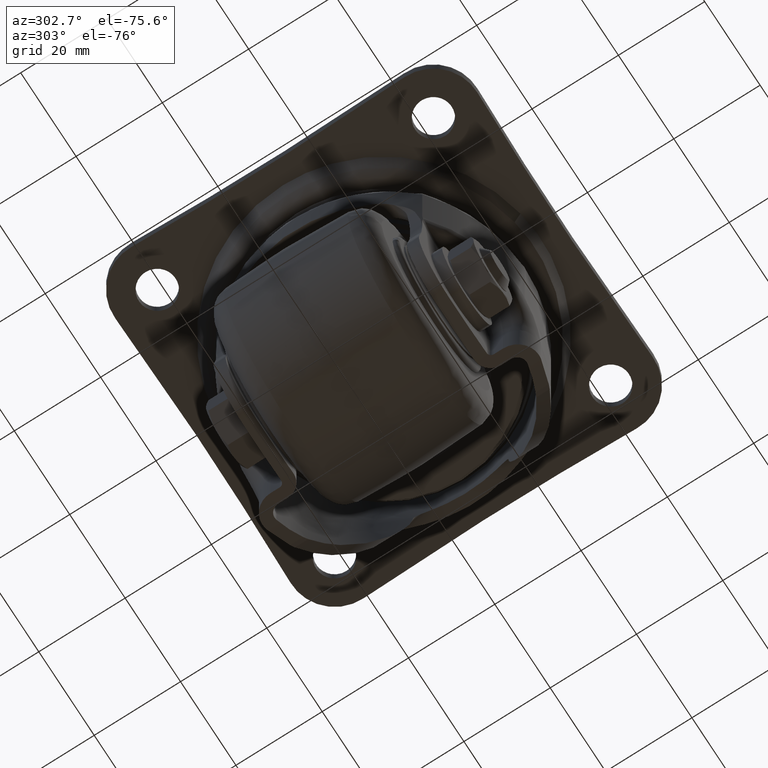
[diagram: clean part render]
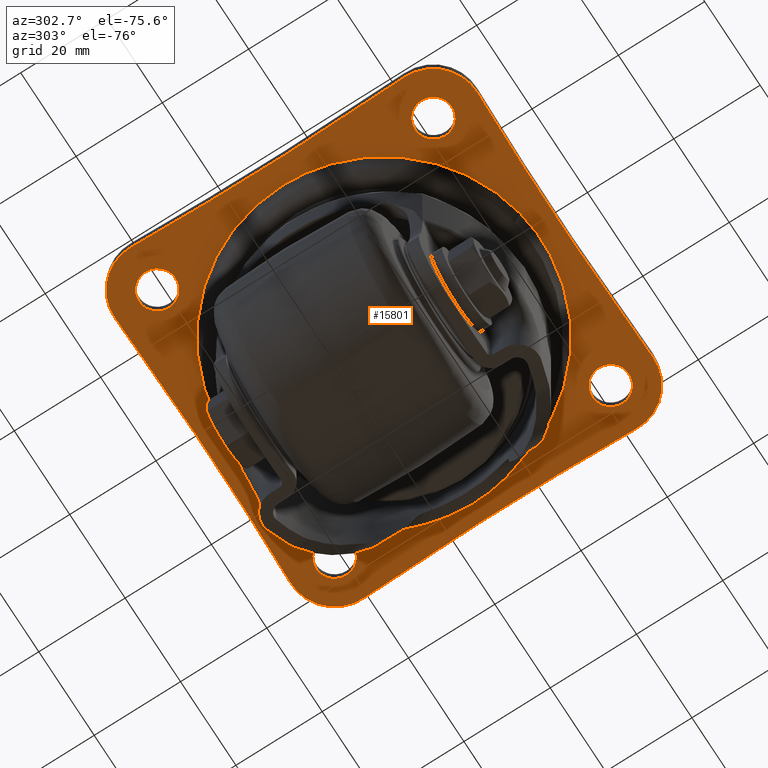
[diagram: same view with one face highlighted and labeled with its STEP entity id]
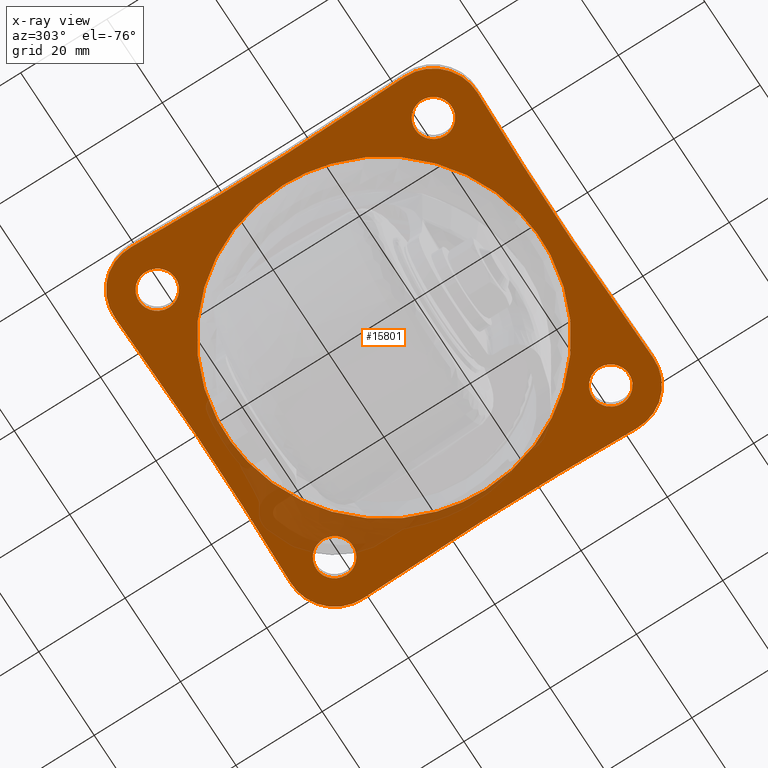
[diagram: x-ray of the same camera — body ghosted, the highlighted face saturated]
A machine part, auxiliary view. The second image highlights one B-rep face of the part: STEP entity #15801.
The next image is the same camera in x-ray: the body ghosted, the highlighted face saturated — about 11% of this face is hidden behind the body in this view.
In plain terms, the highlighted face is a freeform B-spline surface patch.
Its self-contained STEP definition (entity closure, byte-faithful):
#14460=CARTESIAN_POINT('',(-36.250000000000007,32.000003999999947,-3.199992999999955));
#14461=VERTEX_POINT('',#14460);
#14462=CARTESIAN_POINT('',(-32.333451157081043,27.763105331652859,-3.199992999999954));
#14463=VERTEX_POINT('',#14462);
#14464=CARTESIAN_POINT('',(-36.250000000000007,32.000003999999947,-3.199992999999955));
#14465=CARTESIAN_POINT('',(-36.250000000000007,28.071344410673664,-3.199992999999955));
#14466=CARTESIAN_POINT('',(-32.333451157081051,27.763105331652870,-3.199992999999956));
#14474=(BOUNDED_CURVE()B_SPLINE_CURVE(2,(#14464,#14465,#14466),.UNSPECIFIED.,.F.,.U.)B_SPLINE_CURVE_WITH_KNOTS((3,3),(0.0,0.236331300623149),.UNSPECIFIED.)CURVE()GEOMETRIC_REPRESENTATION_ITEM()RATIONAL_B_SPLINE_CURVE((1.0,0.723120658616464,0.969723356151744))REPRESENTATION_ITEM(''));
#14475=EDGE_CURVE('',#14461,#14463,#14474,.T.);
#14477=CARTESIAN_POINT('',(-31.666548842918960,36.236902668347042,-3.199992999999954));
#14478=VERTEX_POINT('',#14477);
#14479=CARTESIAN_POINT('',(-31.666548842918957,36.236902668347042,-3.199992999999956));
#14480=CARTESIAN_POINT('',(-31.833017045098007,36.250003999999947,-3.199992999999954));
#14481=CARTESIAN_POINT('',(-32.0,36.250003999999947,-3.199992999999955));
#14482=CARTESIAN_POINT('',(-36.250000000000014,36.250003999999954,-3.199992999999955));
#14483=CARTESIAN_POINT('',(-36.250000000000007,32.000003999999947,-3.199992999999955));
#14491=(BOUNDED_CURVE()B_SPLINE_CURVE(2,(#14479,#14480,#14481,#14482,#14483),.UNSPECIFIED.,.F.,.U.)B_SPLINE_CURVE_WITH_KNOTS((3,2,3),(0.736331300623150,0.750000000000000,1.0),.UNSPECIFIED.)CURVE()GEOMETRIC_REPRESENTATION_ITEM()RATIONAL_B_SPLINE_CURVE((0.969723356151745,0.983986122570083,1.0,0.707106781186548,1.0))REPRESENTATION_ITEM(''));
#14492=EDGE_CURVE('',#14478,#14461,#14491,.T.);
#14559=CARTESIAN_POINT('',(-27.750000000000000,32.000003999999947,-3.199992999999955));
#14560=VERTEX_POINT('',#14559);
#14561=CARTESIAN_POINT('',(-32.333451157081051,27.763105331652863,-3.199992999999955));
#14562=CARTESIAN_POINT('',(-32.166982954902004,27.750003999999947,-3.199992999999954));
#14563=CARTESIAN_POINT('',(-32.0,27.750003999999951,-3.199992999999955));
#14564=CARTESIAN_POINT('',(-27.749999999999989,27.750003999999954,-3.199992999999955));
#14565=CARTESIAN_POINT('',(-27.750000000000000,32.000003999999947,-3.199992999999955));
#14573=(BOUNDED_CURVE()B_SPLINE_CURVE(2,(#14561,#14562,#14563,#14564,#14565),.UNSPECIFIED.,.F.,.U.)B_SPLINE_CURVE_WITH_KNOTS((3,2,3),(0.236331300623150,0.250000000000000,0.500000000000000),.UNSPECIFIED.)CURVE()GEOMETRIC_REPRESENTATION_ITEM()RATIONAL_B_SPLINE_CURVE((0.969723356151745,0.983986122570083,1.0,0.707106781186548,1.0))REPRESENTATION_ITEM(''));
#14574=EDGE_CURVE('',#14463,#14560,#14573,.T.);
#14608=CARTESIAN_POINT('',(-27.750000000000000,32.000003999999947,-3.199992999999955));
#14609=CARTESIAN_POINT('',(-27.749999999999989,35.928663589326234,-3.199992999999955));
#14610=CARTESIAN_POINT('',(-31.666548842918949,36.236902668347028,-3.199992999999955));
#14618=(BOUNDED_CURVE()B_SPLINE_CURVE(2,(#14608,#14609,#14610),.UNSPECIFIED.,.F.,.U.)B_SPLINE_CURVE_WITH_KNOTS((3,3),(0.500000000000000,0.736331300623149),.UNSPECIFIED.)CURVE()GEOMETRIC_REPRESENTATION_ITEM()RATIONAL_B_SPLINE_CURVE((1.0,0.723120658616464,0.969723356151745))REPRESENTATION_ITEM(''));
#14619=EDGE_CURVE('',#14560,#14478,#14618,.T.);
#14642=CARTESIAN_POINT('',(27.750000000000000,32.000003999999947,-3.199992999999955));
#14643=VERTEX_POINT('',#14642);
#14644=CARTESIAN_POINT('',(31.666548842918960,27.763105331652859,-3.199992999999955));
#14645=VERTEX_POINT('',#14644);
#14646=CARTESIAN_POINT('',(27.750000000000000,32.000003999999947,-3.199992999999955));
#14647=CARTESIAN_POINT('',(27.749999999999993,28.071344410673660,-3.199992999999954));
#14648=CARTESIAN_POINT('',(31.666548842918960,27.763105331652863,-3.199992999999955));
#14656=(BOUNDED_CURVE()B_SPLINE_CURVE(2,(#14646,#14647,#14648),.UNSPECIFIED.,.F.,.U.)B_SPLINE_CURVE_WITH_KNOTS((3,3),(0.0,0.236331300623150),.UNSPECIFIED.)CURVE()GEOMETRIC_REPRESENTATION_ITEM()RATIONAL_B_SPLINE_CURVE((1.0,0.723120658616464,0.969723356151745))REPRESENTATION_ITEM(''));
#14657=EDGE_CURVE('',#14643,#14645,#14656,.T.);
#14659=CARTESIAN_POINT('',(32.333451157081043,36.236902668347042,-3.199992999999955));
#14660=VERTEX_POINT('',#14659);
#14661=CARTESIAN_POINT('',(32.333451157081051,36.236902668347042,-3.199992999999956));
#14662=CARTESIAN_POINT('',(32.166982954902004,36.250003999999947,-3.199992999999954));
#14663=CARTESIAN_POINT('',(32.0,36.250003999999947,-3.199992999999955));
#14664=CARTESIAN_POINT('',(27.749999999999989,36.250003999999954,-3.199992999999955));
#14665=CARTESIAN_POINT('',(27.750000000000000,32.000003999999947,-3.199992999999955));
#14673=(BOUNDED_CURVE()B_SPLINE_CURVE(2,(#14661,#14662,#14663,#14664,#14665),.UNSPECIFIED.,.F.,.U.)B_SPLINE_CURVE_WITH_KNOTS((3,2,3),(0.736331300623150,0.750000000000000,1.0),.UNSPECIFIED.)CURVE()GEOMETRIC_REPRESENTATION_ITEM()RATIONAL_B_SPLINE_CURVE((0.969723356151745,0.983986122570083,1.0,0.707106781186548,1.0))REPRESENTATION_ITEM(''));
#14674=EDGE_CURVE('',#14660,#14643,#14673,.T.);
#14741=CARTESIAN_POINT('',(36.250000000000007,32.000003999999947,-3.199992999999955));
#14742=VERTEX_POINT('',#14741);
#14743=CARTESIAN_POINT('',(31.666548842918953,27.763105331652866,-3.199992999999955));
#14744=CARTESIAN_POINT('',(31.833017045098000,27.750003999999951,-3.199992999999955));
#14745=CARTESIAN_POINT('',(32.0,27.750003999999951,-3.199992999999955));
#14746=CARTESIAN_POINT('',(36.250000000000014,27.750003999999954,-3.199992999999955));
#14747=CARTESIAN_POINT('',(36.250000000000007,32.000003999999947,-3.199992999999955));
#14755=(BOUNDED_CURVE()B_SPLINE_CURVE(2,(#14743,#14744,#14745,#14746,#14747),.UNSPECIFIED.,.F.,.U.)B_SPLINE_CURVE_WITH_KNOTS((3,2,3),(0.236331300623149,0.250000000000000,0.500000000000000),.UNSPECIFIED.)CURVE()GEOMETRIC_REPRESENTATION_ITEM()RATIONAL_B_SPLINE_CURVE((0.969723356151745,0.983986122570083,1.0,0.707106781186548,1.0))REPRESENTATION_ITEM(''));
#14756=EDGE_CURVE('',#14645,#14742,#14755,.T.);
#14790=CARTESIAN_POINT('',(36.250000000000007,32.000003999999947,-3.199992999999955));
#14791=CARTESIAN_POINT('',(36.250000000000000,35.928663589326241,-3.199992999999954));
#14792=CARTESIAN_POINT('',(32.333451157081051,36.236902668347042,-3.199992999999956));
#14800=(BOUNDED_CURVE()B_SPLINE_CURVE(2,(#14790,#14791,#14792),.UNSPECIFIED.,.F.,.U.)B_SPLINE_CURVE_WITH_KNOTS((3,3),(0.500000000000000,0.736331300623150),.UNSPECIFIED.)CURVE()GEOMETRIC_REPRESENTATION_ITEM()RATIONAL_B_SPLINE_CURVE((1.0,0.723120658616464,0.969723356151745))REPRESENTATION_ITEM(''));
#14801=EDGE_CURVE('',#14742,#14660,#14800,.T.);
#14824=CARTESIAN_POINT('',(27.750000000000000,-32.0,-3.199992999999955));
#14825=VERTEX_POINT('',#14824);
#14826=CARTESIAN_POINT('',(31.666548842918960,-36.236898668347102,-3.199992999999955));
#14827=VERTEX_POINT('',#14826);
#14828=CARTESIAN_POINT('',(27.750000000000000,-32.0,-3.199992999999955));
#14829=CARTESIAN_POINT('',(27.749999999999993,-35.928659589326301,-3.199992999999954));
#14830=CARTESIAN_POINT('',(31.666548842918957,-36.236898668347095,-3.199992999999956));
#14838=(BOUNDED_CURVE()B_SPLINE_CURVE(2,(#14828,#14829,#14830),.UNSPECIFIED.,.F.,.U.)B_SPLINE_CURVE_WITH_KNOTS((3,3),(0.0,0.236331300623150),.UNSPECIFIED.)CURVE()GEOMETRIC_REPRESENTATION_ITEM()RATIONAL_B_SPLINE_CURVE((1.0,0.723120658616464,0.969723356151745))REPRESENTATION_ITEM(''));
#14839=EDGE_CURVE('',#14825,#14827,#14838,.T.);
#14841=CARTESIAN_POINT('',(32.333451157081043,-27.763101331652908,-3.199992999999955));
#14842=VERTEX_POINT('',#14841);
#14843=CARTESIAN_POINT('',(32.333451157081051,-27.763101331652916,-3.199992999999956));
#14844=CARTESIAN_POINT('',(32.166982954902004,-27.749999999999996,-3.199992999999954));
#14845=CARTESIAN_POINT('',(32.0,-27.750000000000000,-3.199992999999955));
#14846=CARTESIAN_POINT('',(27.749999999999989,-27.749999999999989,-3.199992999999955));
#14847=CARTESIAN_POINT('',(27.750000000000000,-32.0,-3.199992999999955));
#14855=(BOUNDED_CURVE()B_SPLINE_CURVE(2,(#14843,#14844,#14845,#14846,#14847),.UNSPECIFIED.,.F.,.U.)B_SPLINE_CURVE_WITH_KNOTS((3,2,3),(0.736331300623150,0.750000000000000,1.0),.UNSPECIFIED.)CURVE()GEOMETRIC_REPRESENTATION_ITEM()RATIONAL_B_SPLINE_CURVE((0.969723356151745,0.983986122570083,1.0,0.707106781186548,1.0))REPRESENTATION_ITEM(''));
#14856=EDGE_CURVE('',#14842,#14825,#14855,.T.);
#14923=CARTESIAN_POINT('',(36.250000000000007,-32.0,-3.199992999999955));
#14924=VERTEX_POINT('',#14923);
#14925=CARTESIAN_POINT('',(31.666548842918960,-36.236898668347095,-3.199992999999955));
#14926=CARTESIAN_POINT('',(31.833017045098007,-36.250000000000007,-3.199992999999954));
#14927=CARTESIAN_POINT('',(32.0,-36.250000000000007,-3.199992999999955));
#14928=CARTESIAN_POINT('',(36.250000000000014,-36.250000000000014,-3.199992999999955));
#14929=CARTESIAN_POINT('',(36.250000000000007,-32.0,-3.199992999999955));
#14937=(BOUNDED_CURVE()B_SPLINE_CURVE(2,(#14925,#14926,#14927,#14928,#14929),.UNSPECIFIED.,.F.,.U.)B_SPLINE_CURVE_WITH_KNOTS((3,2,3),(0.236331300623150,0.250000000000000,0.500000000000000),.UNSPECIFIED.)CURVE()GEOMETRIC_REPRESENTATION_ITEM()RATIONAL_B_SPLINE_CURVE((0.969723356151745,0.983986122570083,1.0,0.707106781186548,1.0))REPRESENTATION_ITEM(''));
#14938=EDGE_CURVE('',#14827,#14924,#14937,.T.);
#14972=CARTESIAN_POINT('',(36.250000000000007,-32.0,-3.199992999999955));
#14973=CARTESIAN_POINT('',(36.250000000000000,-28.071340410673709,-3.199992999999954));
#14974=CARTESIAN_POINT('',(32.333451157081051,-27.763101331652916,-3.199992999999956));
#14982=(BOUNDED_CURVE()B_SPLINE_CURVE(2,(#14972,#14973,#14974),.UNSPECIFIED.,.F.,.U.)B_SPLINE_CURVE_WITH_KNOTS((3,3),(0.500000000000000,0.736331300623150),.UNSPECIFIED.)CURVE()GEOMETRIC_REPRESENTATION_ITEM()RATIONAL_B_SPLINE_CURVE((1.0,0.723120658616464,0.969723356151745))REPRESENTATION_ITEM(''));
#14983=EDGE_CURVE('',#14924,#14842,#14982,.T.);
#15006=CARTESIAN_POINT('',(-36.250000000000007,-32.0,-3.199992999999955));
#15007=VERTEX_POINT('',#15006);
#15008=CARTESIAN_POINT('',(-32.333451157081043,-36.236898668347102,-3.199992999999955));
#15009=VERTEX_POINT('',#15008);
#15010=CARTESIAN_POINT('',(-36.250000000000007,-32.0,-3.199992999999955));
#15011=CARTESIAN_POINT('',(-36.250000000000007,-35.928659589326294,-3.199992999999954));
#15012=CARTESIAN_POINT('',(-32.333451157081043,-36.236898668347088,-3.199992999999955));
#15020=(BOUNDED_CURVE()B_SPLINE_CURVE(2,(#15010,#15011,#15012),.UNSPECIFIED.,.F.,.U.)B_SPLINE_CURVE_WITH_KNOTS((3,3),(0.0,0.236331300623150),.UNSPECIFIED.)CURVE()GEOMETRIC_REPRESENTATION_ITEM()RATIONAL_B_SPLINE_CURVE((1.0,0.723120658616464,0.969723356151745))REPRESENTATION_ITEM(''));
#15021=EDGE_CURVE('',#15007,#15009,#15020,.T.);
#15023=CARTESIAN_POINT('',(-31.666548842918960,-27.763101331652908,-3.199992999999954));
#15024=VERTEX_POINT('',#15023);
#15025=CARTESIAN_POINT('',(-31.666548842918957,-27.763101331652916,-3.199992999999956));
#15026=CARTESIAN_POINT('',(-31.833017045098007,-27.749999999999996,-3.199992999999954));
#15027=CARTESIAN_POINT('',(-32.0,-27.750000000000000,-3.199992999999955));
#15028=CARTESIAN_POINT('',(-36.250000000000014,-27.749999999999989,-3.199992999999955));
#15029=CARTESIAN_POINT('',(-36.250000000000007,-32.0,-3.199992999999955));
#15037=(BOUNDED_CURVE()B_SPLINE_CURVE(2,(#15025,#15026,#15027,#15028,#15029),.UNSPECIFIED.,.F.,.U.)B_SPLINE_CURVE_WITH_KNOTS((3,2,3),(0.736331300623150,0.750000000000000,1.0),.UNSPECIFIED.)CURVE()GEOMETRIC_REPRESENTATION_ITEM()RATIONAL_B_SPLINE_CURVE((0.969723356151745,0.983986122570083,1.0,0.707106781186548,1.0))REPRESENTATION_ITEM(''));
#15038=EDGE_CURVE('',#15024,#15007,#15037,.T.);
#15105=CARTESIAN_POINT('',(-27.750000000000000,-32.0,-3.199992999999955));
#15106=VERTEX_POINT('',#15105);
#15107=CARTESIAN_POINT('',(-32.333451157081043,-36.236898668347095,-3.199992999999955));
#15108=CARTESIAN_POINT('',(-32.166982954902004,-36.250000000000007,-3.199992999999954));
#15109=CARTESIAN_POINT('',(-32.0,-36.250000000000007,-3.199992999999955));
#15110=CARTESIAN_POINT('',(-27.749999999999989,-36.250000000000014,-3.199992999999955));
#15111=CARTESIAN_POINT('',(-27.750000000000000,-32.0,-3.199992999999955));
#15119=(BOUNDED_CURVE()B_SPLINE_CURVE(2,(#15107,#15108,#15109,#15110,#15111),.UNSPECIFIED.,.F.,.U.)B_SPLINE_CURVE_WITH_KNOTS((3,2,3),(0.236331300623150,0.250000000000000,0.500000000000000),.UNSPECIFIED.)CURVE()GEOMETRIC_REPRESENTATION_ITEM()RATIONAL_B_SPLINE_CURVE((0.969723356151745,0.983986122570083,1.0,0.707106781186548,1.0))REPRESENTATION_ITEM(''));
#15120=EDGE_CURVE('',#15009,#15106,#15119,.T.);
#15154=CARTESIAN_POINT('',(-27.750000000000000,-32.0,-3.199992999999955));
#15155=CARTESIAN_POINT('',(-27.749999999999989,-28.071340410673706,-3.199992999999955));
#15156=CARTESIAN_POINT('',(-31.666548842918949,-27.763101331652908,-3.199992999999955));
#15164=(BOUNDED_CURVE()B_SPLINE_CURVE(2,(#15154,#15155,#15156),.UNSPECIFIED.,.F.,.U.)B_SPLINE_CURVE_WITH_KNOTS((3,3),(0.500000000000000,0.736331300623149),.UNSPECIFIED.)CURVE()GEOMETRIC_REPRESENTATION_ITEM()RATIONAL_B_SPLINE_CURVE((1.0,0.723120658616464,0.969723356151745))REPRESENTATION_ITEM(''));
#15165=EDGE_CURVE('',#15106,#15024,#15164,.T.);
#15343=CARTESIAN_POINT('',(6.651597409466108,35.888808059099112,-3.199992999990037));
#15344=VERTEX_POINT('',#15343);
#15350=CARTESIAN_POINT('',(36.500004000000096,0.0,-3.199993000000000));
#15351=VERTEX_POINT('',#15350);
#15352=CARTESIAN_POINT('',(6.651597409466108,35.888808059099105,-3.199992999990037));
#15353=CARTESIAN_POINT('',(36.500004000000672,30.356732888827008,-3.199992999995019));
#15354=CARTESIAN_POINT('',(36.500004000000096,0.0,-3.199993000000000));
#15362=(BOUNDED_CURVE()B_SPLINE_CURVE(2,(#15352,#15353,#15354),.UNSPECIFIED.,.F.,.U.)B_SPLINE_CURVE_WITH_KNOTS((3,3),(0.281295845407931,0.500000000000000),.UNSPECIFIED.)CURVE()GEOMETRIC_REPRESENTATION_ITEM()RATIONAL_B_SPLINE_CURVE((0.935849061229286,0.743772144774615,1.0))REPRESENTATION_ITEM(''));
#15363=EDGE_CURVE('',#15344,#15351,#15362,.T.);
#15365=CARTESIAN_POINT('',(-6.651597409466108,-35.888808059099112,-3.199992999990040));
#15366=VERTEX_POINT('',#15365);
#15367=CARTESIAN_POINT('',(36.500004000000096,0.0,-3.199993000000000));
#15368=CARTESIAN_POINT('',(36.500003999999635,-36.500004000002619,-3.199992999995859));
#15369=CARTESIAN_POINT('',(-1.032248E-012,-36.500004000005653,-3.199992999990878));
#15370=CARTESIAN_POINT('',(-3.353879213458418,-36.500004000005923,-3.199992999990421));
#15371=CARTESIAN_POINT('',(-6.651597409466108,-35.888808059099105,-3.199992999990040));
#15379=(BOUNDED_CURVE()B_SPLINE_CURVE(2,(#15367,#15368,#15369,#15370,#15371),.UNSPECIFIED.,.F.,.U.)B_SPLINE_CURVE_WITH_KNOTS((3,2,3),(0.500000000000000,0.750000000000000,0.781295845407931),.UNSPECIFIED.)CURVE()GEOMETRIC_REPRESENTATION_ITEM()RATIONAL_B_SPLINE_CURVE((1.0,0.707106781186547,1.0,0.963334636411932,0.935849061229286))REPRESENTATION_ITEM(''));
#15380=EDGE_CURVE('',#15351,#15366,#15379,.T.);
#15410=CARTESIAN_POINT('',(-36.500004000000096,0.0,-3.199993000000000));
#15411=VERTEX_POINT('',#15410);
#15412=CARTESIAN_POINT('',(-6.651597409466108,-35.888808059099105,-3.199992999990040));
#15413=CARTESIAN_POINT('',(-36.500004000000672,-30.356732888827008,-3.199992999995020));
#15414=CARTESIAN_POINT('',(-36.500004000000096,0.0,-3.199993000000000));
#15422=(BOUNDED_CURVE()B_SPLINE_CURVE(2,(#15412,#15413,#15414),.UNSPECIFIED.,.F.,.U.)B_SPLINE_CURVE_WITH_KNOTS((3,3),(0.781295845407931,1.0),.UNSPECIFIED.)CURVE()GEOMETRIC_REPRESENTATION_ITEM()RATIONAL_B_SPLINE_CURVE((0.935849061229286,0.743772144774615,1.0))REPRESENTATION_ITEM(''));
#15423=EDGE_CURVE('',#15366,#15411,#15422,.T.);
#15425=CARTESIAN_POINT('',(-36.500004000000096,0.0,-3.199993000000000));
#15426=CARTESIAN_POINT('',(-36.500003999999635,36.500004000002619,-3.199992999995857));
#15427=CARTESIAN_POINT('',(1.032248E-012,36.500004000005653,-3.199992999990876));
#15428=CARTESIAN_POINT('',(3.353879213458418,36.500004000005923,-3.199992999990418));
#15429=CARTESIAN_POINT('',(6.651597409466108,35.888808059099105,-3.199992999990037));
#15437=(BOUNDED_CURVE()B_SPLINE_CURVE(2,(#15425,#15426,#15427,#15428,#15429),.UNSPECIFIED.,.F.,.U.)B_SPLINE_CURVE_WITH_KNOTS((3,2,3),(0.0,0.250000000000000,0.281295845407931),.UNSPECIFIED.)CURVE()GEOMETRIC_REPRESENTATION_ITEM()RATIONAL_B_SPLINE_CURVE((1.0,0.707106781186547,1.0,0.963334636411932,0.935849061229286))REPRESENTATION_ITEM(''));
#15438=EDGE_CURVE('',#15411,#15344,#15437,.T.);
#15634=CARTESIAN_POINT('',(-46.194085812739807,46.194161494424037,-3.199993000000000));
#15635=CARTESIAN_POINT('',(46.194117570604483,46.194161494424037,-3.199993000000000));
#15636=CARTESIAN_POINT('',(-46.194085812739807,-46.194161494425202,-3.199993000000000));
#15637=CARTESIAN_POINT('',(46.194117570604483,-46.194161494425202,-3.199993000000000));
#15638=B_SPLINE_SURFACE_WITH_KNOTS('',1,1,((#15634,#15636),(#15635,#15637)),.UNSPECIFIED.,.F.,.F.,.U.,(2,2),(2,2),(0.0,92.388203383344290),(0.0,92.388322988849239),.UNSPECIFIED.);
#15639=CARTESIAN_POINT('',(41.992948058225352,31.625154184200799,-3.199992999999955));
#15640=VERTEX_POINT('',#15639);
#15641=CARTESIAN_POINT('',(31.625108336016851,41.992987745338048,-3.199992999999955));
#15642=VERTEX_POINT('',#15641);
#15643=CARTESIAN_POINT('',(41.992948058225352,31.625154184200799,-3.199992999999955));
#15644=CARTESIAN_POINT('',(42.023682453903781,32.438913869556238,-3.199992999999958));
#15645=CARTESIAN_POINT('',(41.891905204095657,33.987755417138992,-3.199992999999954));
#15646=CARTESIAN_POINT('',(41.195055424325282,36.118744073249502,-3.199992999999951));
#15647=CARTESIAN_POINT('',(40.239443088691452,37.756080397519042,-3.199992999999962));
#15648=CARTESIAN_POINT('',(39.268494881579741,38.904449777521528,-3.199992999999967));
#15649=CARTESIAN_POINT('',(38.260711928980697,39.837369375433951,-3.199992999999948));
#15650=CARTESIAN_POINT('',(37.204506737903223,40.578442240194860,-3.199992999999960));
#15651=CARTESIAN_POINT('',(35.788566932725530,41.298389223399361,-3.199992999999950));
#15652=CARTESIAN_POINT('',(33.987877970693603,41.887399752423853,-3.199992999999965));
#15653=CARTESIAN_POINT('',(32.481691048677803,42.025370530796913,-3.199992999999952));
#15654=CARTESIAN_POINT('',(31.625108336016851,41.992987745338048,-3.199992999999955));
#15655=B_SPLINE_CURVE_WITH_KNOTS('',3,(#15643,#15644,#15645,#15646,#15647,#15648,#15649,#15650,#15651,#15652,#15653,#15654),.UNSPECIFIED.,.F.,.U.,(4,1,1,1,1,1,1,1,1,4),(-0.000000094885387,2.442968379629118,4.628813598116899,6.686058154966455,8.100416944660809,9.129034967602777,10.800543140064230,11.957751221129600,13.886439092191941,16.457983742720330),.UNSPECIFIED.);
#15656=EDGE_CURVE('',#15640,#15642,#15655,.T.);
#15657=ORIENTED_EDGE('',*,*,#15656,.F.);
#15658=CARTESIAN_POINT('',(41.992949260289649,-31.625149835499101,-3.199992999999955));
#15659=VERTEX_POINT('',#15658);
#15660=CARTESIAN_POINT('',(41.992948058225352,31.625154184200799,-3.199992999999955));
#15661=CARTESIAN_POINT('',(40.806592197343292,0.000002151804351,-3.199992999999955));
#15662=CARTESIAN_POINT('',(41.992949395424752,-31.625149830429599,-3.199992999999955));
#15670=(BOUNDED_CURVE()B_SPLINE_CURVE(2,(#15660,#15661,#15662),.UNSPECIFIED.,.F.,.U.)CURVE()GEOMETRIC_REPRESENTATION_ITEM()QUASI_UNIFORM_CURVE()RATIONAL_B_SPLINE_CURVE((1.0,0.999297126544997,1.0))REPRESENTATION_ITEM(''));
#15671=EDGE_CURVE('',#15640,#15659,#15670,.T.);
#15672=ORIENTED_EDGE('',*,*,#15671,.T.);
#15673=CARTESIAN_POINT('',(31.625108336017298,-41.992987745339192,-3.199992999999955));
#15674=VERTEX_POINT('',#15673);
#15675=CARTESIAN_POINT('',(31.625108336017298,-41.992987745339192,-3.199992999999955));
#15676=CARTESIAN_POINT('',(32.438866516035652,-42.023725480044781,-3.199992999999954));
#15677=CARTESIAN_POINT('',(33.987721461676863,-41.891954627832718,-3.199992999999955));
#15678=CARTESIAN_POINT('',(35.954753324020793,-41.248672035286603,-3.199992999999958));
#15679=CARTESIAN_POINT('',(37.386247948619307,-40.461776300572431,-3.199992999999955));
#15680=CARTESIAN_POINT('',(38.455669814395861,-39.669625677039349,-3.199992999999954));
#15681=CARTESIAN_POINT('',(39.514451443713043,-38.664033543589511,-3.199992999999963));
#15682=CARTESIAN_POINT('',(40.557385808186083,-37.293339241459961,-3.199992999999951));
#15683=CARTESIAN_POINT('',(41.375202283784013,-35.632214303959309,-3.199992999999969));
#15684=CARTESIAN_POINT('',(41.917241476087320,-33.729492134731210,-3.199992999999931));
#15685=CARTESIAN_POINT('',(42.022030884877331,-32.396072057931050,-3.199992999999962));
#15686=CARTESIAN_POINT('',(41.992949260289649,-31.625149835499101,-3.199992999999955));
#15687=B_SPLINE_CURVE_WITH_KNOTS('',3,(#15675,#15676,#15677,#15678,#15679,#15680,#15681,#15682,#15683,#15684,#15685,#15686),.UNSPECIFIED.,.F.,.U.,(4,1,1,1,1,1,1,1,1,4),(0.000000029347877,2.442969275225778,4.628815183901805,6.171750811582196,7.328954961936727,8.614725557168637,10.543391547728399,12.472071925009089,14.143601867415430,16.457989066502041),.UNSPECIFIED.);
#15688=EDGE_CURVE('',#15674,#15659,#15687,.T.);
#15689=ORIENTED_EDGE('',*,*,#15688,.F.);
#15690=CARTESIAN_POINT('',(-31.625081056370949,-41.992986306088547,-3.199992999999955));
#15691=VERTEX_POINT('',#15690);
#15692=CARTESIAN_POINT('',(31.625108336017391,-41.992987745339207,-3.199992999999955));
#15693=CARTESIAN_POINT('',(0.000013666818445,-40.806635694541903,-3.199992999999954));
#15694=CARTESIAN_POINT('',(-31.625081040790871,-41.992986721413942,-3.199992999999955));
#15702=(BOUNDED_CURVE()B_SPLINE_CURVE(2,(#15692,#15693,#15694),.UNSPECIFIED.,.F.,.U.)CURVE()GEOMETRIC_REPRESENTATION_ITEM()QUASI_UNIFORM_CURVE()RATIONAL_B_SPLINE_CURVE((1.0,0.999297129907167,1.0))REPRESENTATION_ITEM(''));
#15703=EDGE_CURVE('',#15674,#15691,#15702,.T.);
#15704=ORIENTED_EDGE('',*,*,#15703,.T.);
#15705=CARTESIAN_POINT('',(-41.992918253317150,-31.625148198415950,-3.199992999999955));
#15706=VERTEX_POINT('',#15705);
#15707=CARTESIAN_POINT('',(-41.992918253317150,-31.625148198415950,-3.199992999999955));
#15708=CARTESIAN_POINT('',(-42.023625952349477,-32.438906082953523,-3.199992999999959));
#15709=CARTESIAN_POINT('',(-41.917477891468607,-33.686573302525737,-3.199992999999950));
#15710=CARTESIAN_POINT('',(-41.480339239338669,-35.258971899345212,-3.199992999999958));
#15711=CARTESIAN_POINT('',(-40.937526632884079,-36.567581982327241,-3.199992999999957));
#15712=CARTESIAN_POINT('',(-40.095298198310417,-37.969261280182117,-3.199992999999952));
#15713=CARTESIAN_POINT('',(-39.007108790404672,-39.191173350264187,-3.199992999999959));
#15714=CARTESIAN_POINT('',(-37.747840473078213,-40.228312128190232,-3.199992999999957));
#15715=CARTESIAN_POINT('',(-36.530631834316473,-40.959762953718510,-3.199992999999937));
#15716=CARTESIAN_POINT('',(-35.019173639070800,-41.575417539669957,-3.199992999999957));
#15717=CARTESIAN_POINT('',(-33.427939142707757,-41.952236332810962,-3.199992999999990));
#15718=CARTESIAN_POINT('',(-32.224678796352869,-42.015527989643772,-3.199992999999913));
#15719=CARTESIAN_POINT('',(-31.625081056370949,-41.992986306088547,-3.199992999999955));
#15720=B_SPLINE_CURVE_WITH_KNOTS('',3,(#15707,#15708,#15709,#15710,#15711,#15712,#15713,#15714,#15715,#15716,#15717,#15718,#15719),.UNSPECIFIED.,.F.,.U.,(4,1,1,1,1,1,1,1,1,1,4),(0.000000029323044,2.442968682533385,3.728758524585171,4.885971854338695,6.686058768304182,8.614723467282079,9.771927575389821,11.572014865880019,12.857806548028060,14.657914119143291,16.457985073782542),.UNSPECIFIED.);
#15721=EDGE_CURVE('',#15706,#15691,#15720,.T.);
#15722=ORIENTED_EDGE('',*,*,#15721,.F.);
#15723=CARTESIAN_POINT('',(-41.992915299545899,31.625148881960602,-3.199992999999955));
#15724=VERTEX_POINT('',#15723);
#15725=CARTESIAN_POINT('',(-41.992918253317193,-31.625148198416021,-3.199992999999955));
#15726=CARTESIAN_POINT('',(-40.806561972777210,0.000000286368831,-3.199992999999955));
#15727=CARTESIAN_POINT('',(-41.992915652550593,31.625148868718089,-3.199992999999955));
#15735=(BOUNDED_CURVE()B_SPLINE_CURVE(2,(#15725,#15726,#15727),.UNSPECIFIED.,.F.,.U.)CURVE()GEOMETRIC_REPRESENTATION_ITEM()QUASI_UNIFORM_CURVE()RATIONAL_B_SPLINE_CURVE((1.0,0.999297128224654,1.0))REPRESENTATION_ITEM(''));
#15736=EDGE_CURVE('',#15706,#15724,#15735,.T.);
#15737=ORIENTED_EDGE('',*,*,#15736,.T.);
#15738=CARTESIAN_POINT('',(-31.625078908228200,41.992986641414049,-3.199992999999955));
#15739=VERTEX_POINT('',#15738);
#15740=CARTESIAN_POINT('',(-31.625078908228200,41.992986641414049,-3.199992999999955));
#15741=CARTESIAN_POINT('',(-32.353172681482100,42.020422943728057,-3.199992999999960));
#15742=CARTESIAN_POINT('',(-33.514258566841249,41.936718372080563,-3.199992999999952));
#15743=CARTESIAN_POINT('',(-35.014050726692652,41.561067362164572,-3.199992999999961));
#15744=CARTESIAN_POINT('',(-36.456429056327487,41.005877475131243,-3.199992999999940));
#15745=CARTESIAN_POINT('',(-37.717733181793932,40.258899758232410,-3.199992999999982));
#15746=CARTESIAN_POINT('',(-38.969826814993887,39.213987582914498,-3.199992999999919));
#15747=CARTESIAN_POINT('',(-39.985305412920127,38.102804142109633,-3.199992999999968));
#15748=CARTESIAN_POINT('',(-40.978937480771002,36.541778326536722,-3.199992999999969));
#15749=CARTESIAN_POINT('',(-41.608492986738099,34.937434005376218,-3.199992999999952));
#15750=CARTESIAN_POINT('',(-41.961152034436083,33.256096011681187,-3.199992999999971));
#15751=CARTESIAN_POINT('',(-42.015466579367768,32.224748297103488,-3.199992999999915));
#15752=CARTESIAN_POINT('',(-41.992915299545899,31.625148881960602,-3.199992999999955));
#15753=B_SPLINE_CURVE_WITH_KNOTS('',3,(#15740,#15741,#15742,#15743,#15744,#15745,#15746,#15747,#15748,#15749,#15750,#15751,#15752),.UNSPECIFIED.,.F.,.U.,(4,1,1,1,1,1,1,1,1,1,4),(0.000000029298832,2.185812144566963,3.471599384476802,4.628813650030267,6.814637342224206,7.843263740711501,9.514771748703666,11.314855741935331,13.372122286249940,14.657912818025791,16.457983612886299),.UNSPECIFIED.);
#15754=EDGE_CURVE('',#15739,#15724,#15753,.T.);
#15755=ORIENTED_EDGE('',*,*,#15754,.F.);
#15756=CARTESIAN_POINT('',(-31.625078908228112,41.992986641414042,-3.199992999999955));
#15757=CARTESIAN_POINT('',(0.000014734599592,40.806635734596426,-3.199992999999955));
#15758=CARTESIAN_POINT('',(31.625108336016961,41.992987745338112,-3.199992999999955));
#15766=(BOUNDED_CURVE()B_SPLINE_CURVE(2,(#15756,#15757,#15758),.UNSPECIFIED.,.F.,.U.)CURVE()GEOMETRIC_REPRESENTATION_ITEM()QUASI_UNIFORM_CURVE()RATIONAL_B_SPLINE_CURVE((1.0,0.999297129954580,1.0))REPRESENTATION_ITEM(''));
#15767=EDGE_CURVE('',#15739,#15642,#15766,.T.);
#15768=ORIENTED_EDGE('',*,*,#15767,.T.);
#15769=EDGE_LOOP('',(#15657,#15672,#15689,#15704,#15722,#15737,#15755,#15768));
#15770=FACE_OUTER_BOUND('',#15769,.T.);
#15771=ORIENTED_EDGE('',*,*,#15438,.F.);
#15772=ORIENTED_EDGE('',*,*,#15423,.F.);
#15773=ORIENTED_EDGE('',*,*,#15380,.F.);
#15774=ORIENTED_EDGE('',*,*,#15363,.F.);
#15775=EDGE_LOOP('',(#15771,#15772,#15773,#15774));
#15776=FACE_BOUND('',#15775,.T.);
#15777=ORIENTED_EDGE('',*,*,#15165,.T.);
#15778=ORIENTED_EDGE('',*,*,#15038,.T.);
#15779=ORIENTED_EDGE('',*,*,#15021,.T.);
#15780=ORIENTED_EDGE('',*,*,#15120,.T.);
#15781=EDGE_LOOP('',(#15777,#15778,#15779,#15780));
#15782=FACE_BOUND('',#15781,.T.);
#15783=ORIENTED_EDGE('',*,*,#14983,.T.);
#15784=ORIENTED_EDGE('',*,*,#14856,.T.);
#15785=ORIENTED_EDGE('',*,*,#14839,.T.);
#15786=ORIENTED_EDGE('',*,*,#14938,.T.);
#15787=EDGE_LOOP('',(#15783,#15784,#15785,#15786));
#15788=FACE_BOUND('',#15787,.T.);
#15789=ORIENTED_EDGE('',*,*,#14801,.T.);
#15790=ORIENTED_EDGE('',*,*,#14674,.T.);
#15791=ORIENTED_EDGE('',*,*,#14657,.T.);
#15792=ORIENTED_EDGE('',*,*,#14756,.T.);
#15793=EDGE_LOOP('',(#15789,#15790,#15791,#15792));
#15794=FACE_BOUND('',#15793,.T.);
#15795=ORIENTED_EDGE('',*,*,#14619,.T.);
#15796=ORIENTED_EDGE('',*,*,#14492,.T.);
#15797=ORIENTED_EDGE('',*,*,#14475,.T.);
#15798=ORIENTED_EDGE('',*,*,#14574,.T.);
#15799=EDGE_LOOP('',(#15795,#15796,#15797,#15798));
#15800=FACE_BOUND('',#15799,.T.);
#15801=ADVANCED_FACE('',(#15770,#15776,#15782,#15788,#15794,#15800),#15638,.T.);